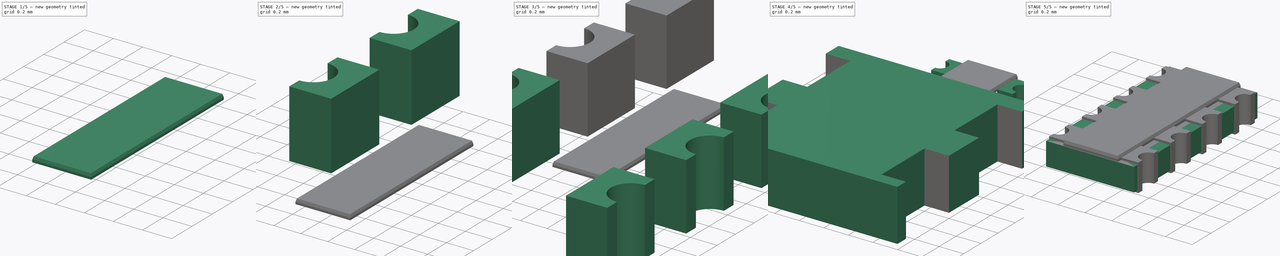
[diagram: build sequence overview — one tinted view per stage of 5, left to right]
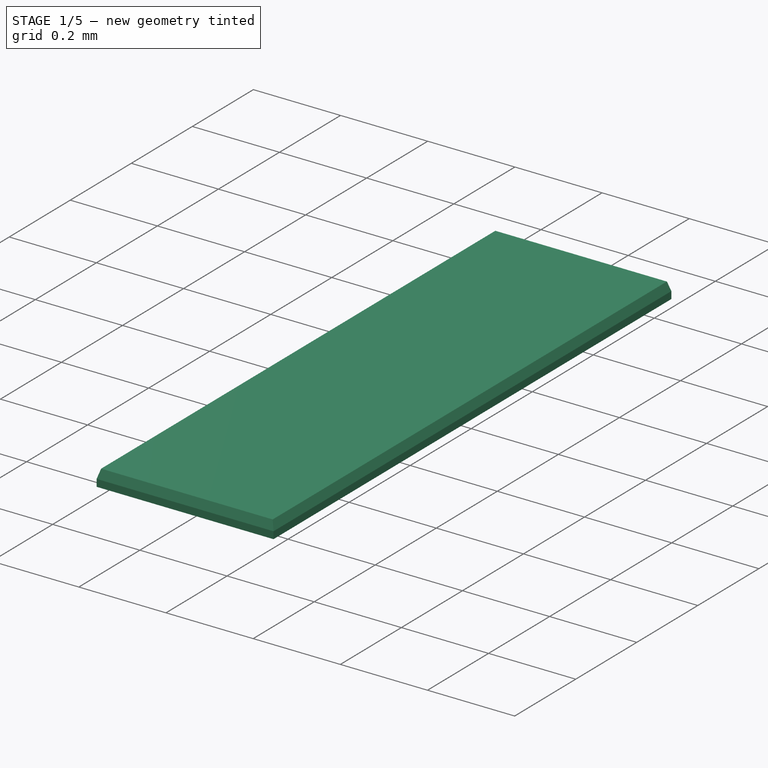
[diagram: stage 1 of 5 — iso view after this stage's code; geometry added in this stage tinted green]
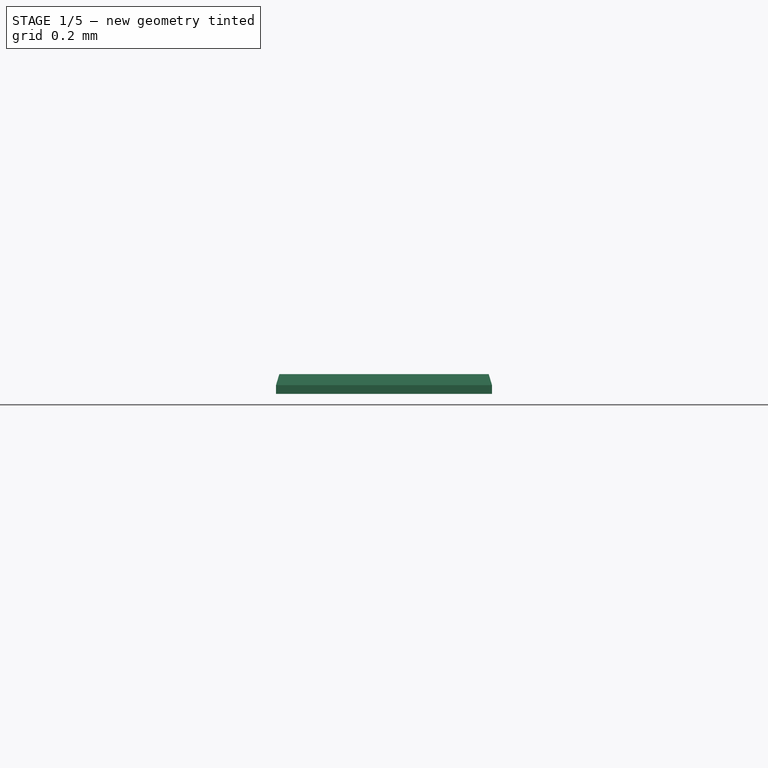
[diagram: stage 1 of 5 — front view after this stage's code; geometry added in this stage tinted green]
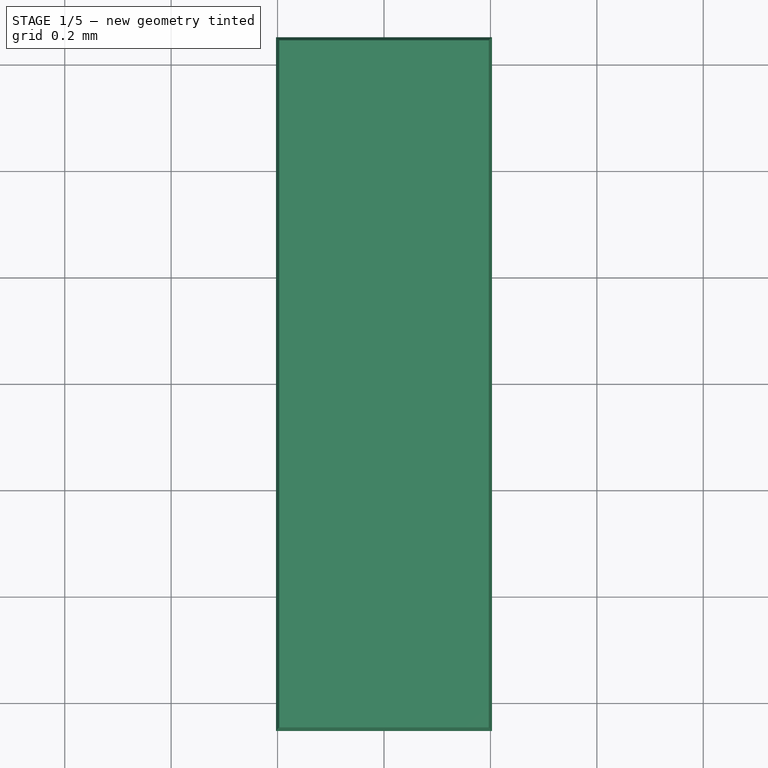
[diagram: stage 1 of 5 — top view after this stage's code; geometry added in this stage tinted green]
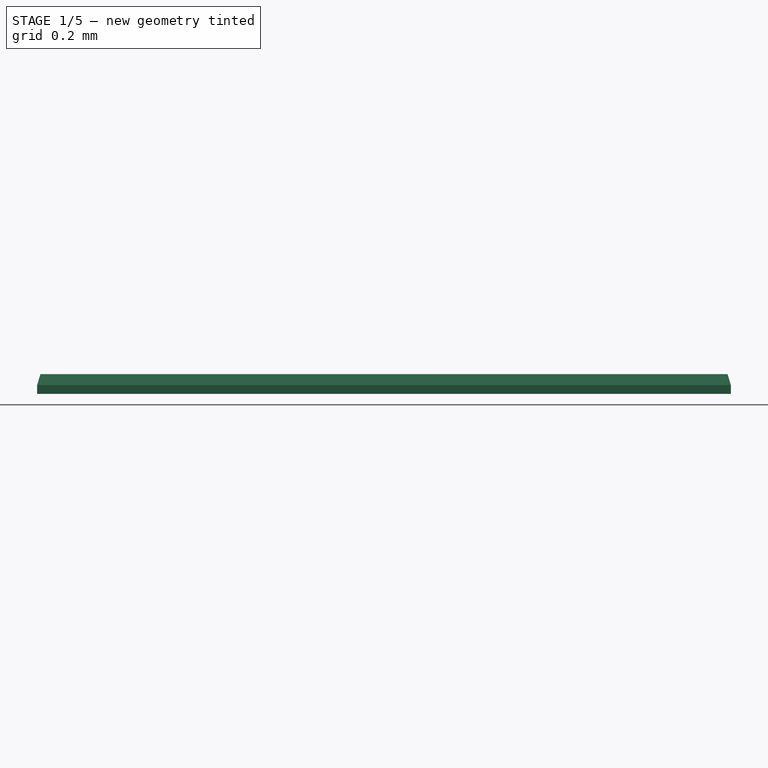
[diagram: stage 1 of 5 — right view after this stage's code; geometry added in this stage tinted green]
FCSTD DOCUMENT  (FreeCAD 0.16R6703 (Git))
Label: R_Array_Convex_4x0603
License: All rights reserved
LicenseURL: http://en.wikipedia.org/wiki/All_rights_reserved
objects: Part::FeaturePython×8, Part::MultiFuse×5, App::DocumentObjectGroup×5, Part::Mirroring×4, Sketcher::SketchObject×2, PartDesign::Pad×2, Part::Box×1, Part::Plane×1, Part::Part2DObjectPython×1, Part::Feature×1
note: 27 computed .brp shape members not serialized (recipe doc carries the construction recipe); baked Part::Feature solids carry a one-line shape summary decoded from their .brp

FEATURE [Part::Box] Box  label="Cube"
  Height = 0.04
  Length = 0.99
  Width = 3.18
FEATURE [Part::Plane] Plane
  Length = 10
  Placement = pos=(0.73,2.2,0.09) rot=(0,0,1;0rad)
  Width = 10
FEATURE [Part::Part2DObjectPython] Rectangle  # Draft 2D object (typed FeaturePython)
  ChamferSize = 0
  Columns = 1
  FilletRadius = 0
  Height = -3.15
  Length = 0.96
  MakeFace = true
  Placement = pos=(0.015,3.165,0.09) rot=(0,0,1;0rad)
  Rows = 1
FEATURE [Part::Feature] Solid
  shape: bbox 1.089 x 3.498 x 0.055 mm, 6 faces (baked)
FEATURE [Part::MultiFuse] Fusion004
  Shapes = -> [Box,Solid]
FEATURE [App::DocumentObjectGroup] Group003  label="top-src"
  Group = -> [Fusion004,Rectangle,Plane]
FEATURE [App::DocumentObjectGroup] Group  label="src"
  Group = -> [Group001,Group002,Group003]
FEATURE [Part::FeaturePython] Clone003  label="top"  # Draft clone (typed FeaturePython)
  Objects = -> [Fusion004]
  Placement = pos=(-0.495,-1.59,0.475001) rot=(0,0,1;0rad)
  Scale = (1,1,1)
FEATURE [Part::FeaturePython] Clone006  label="Clone of top"  # Draft clone (typed FeaturePython)
  Objects = -> [Clone003]
  Placement = pos=(-0.495,-1.59,0.475001) rot=(0,0,1;0rad)
  Scale = (0.41,0.41,0.41)
FEATURE [App::DocumentObjectGroup] Group004  label="rescaled-for-kicad"
  Group = -> [Clone004,Clone005,Clone006]
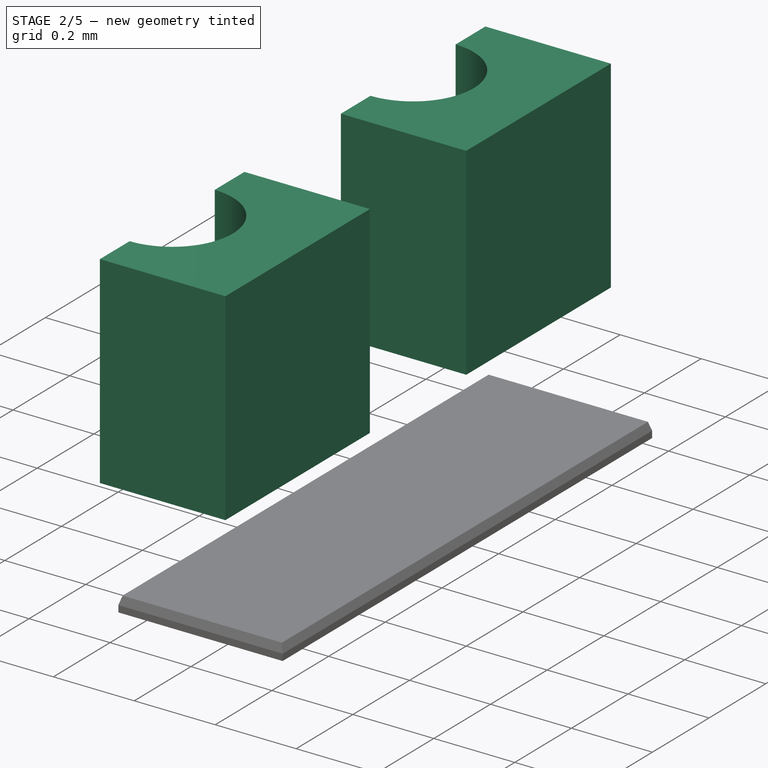
[diagram: stage 2 of 5 — iso view after this stage's code; geometry added in this stage tinted green]
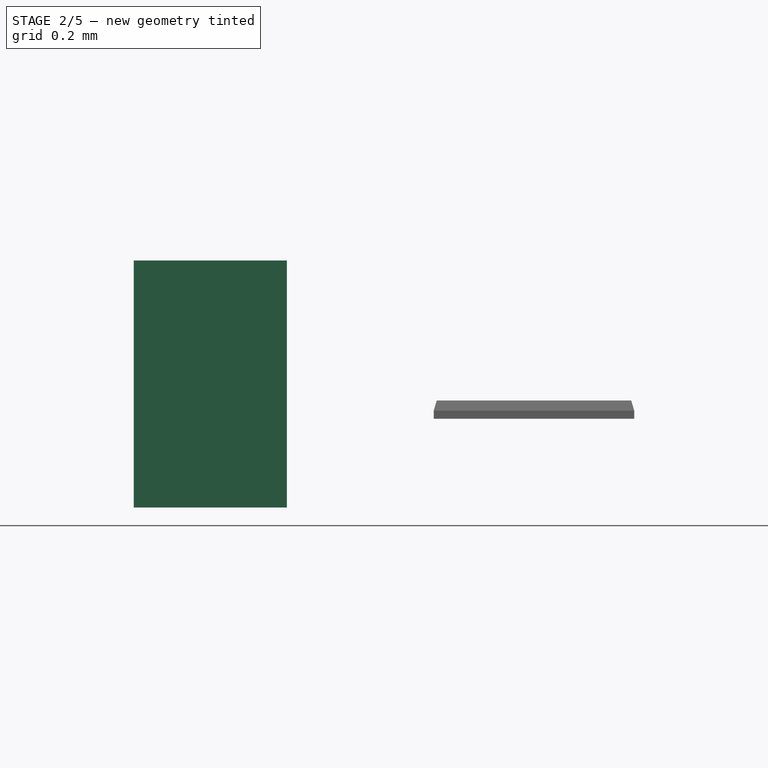
[diagram: stage 2 of 5 — front view after this stage's code; geometry added in this stage tinted green]
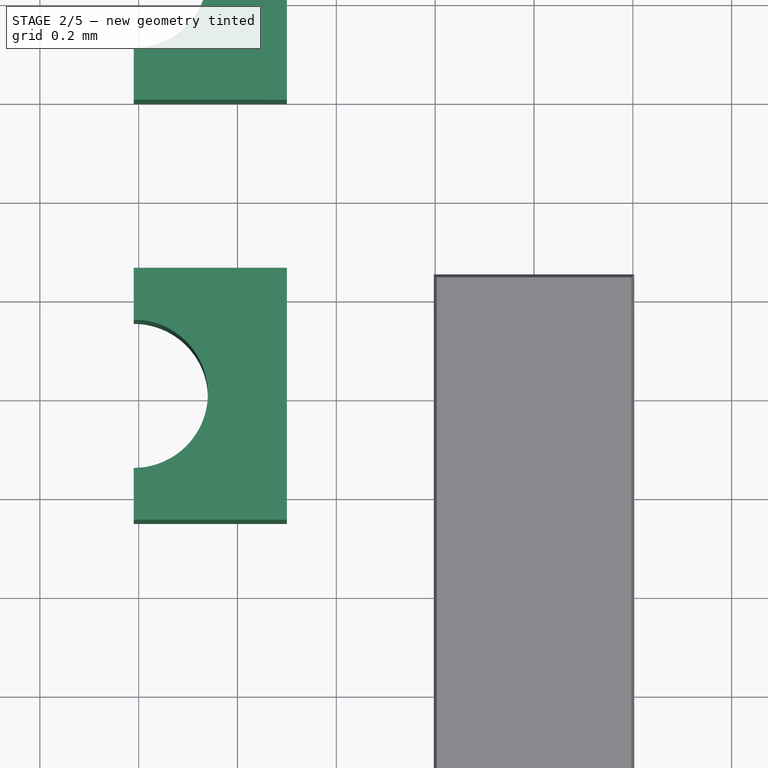
[diagram: stage 2 of 5 — top view after this stage's code; geometry added in this stage tinted green]
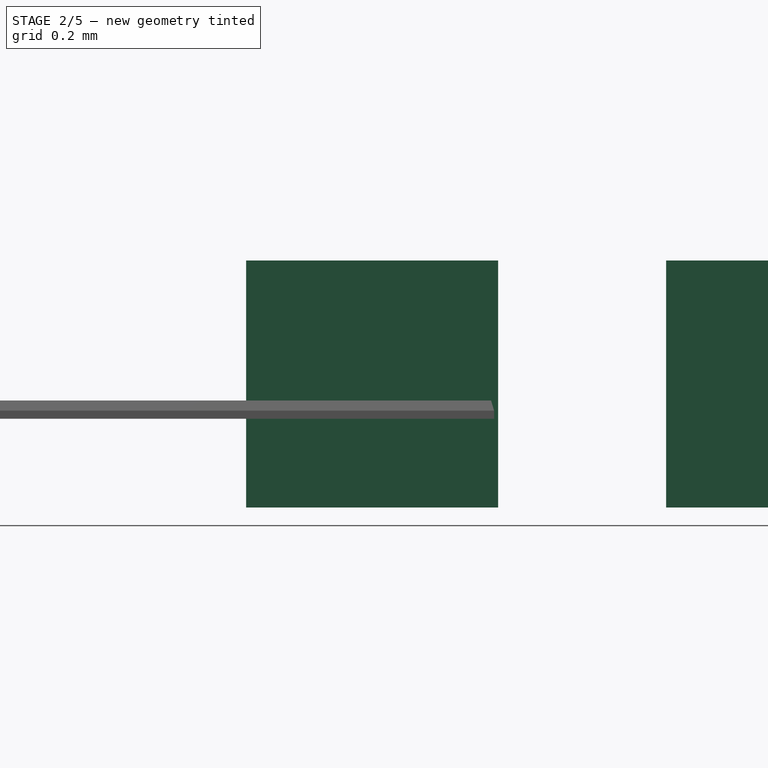
[diagram: stage 2 of 5 — right view after this stage's code; geometry added in this stage tinted green]
FEATURE [Sketcher::SketchObject] Sketch001
  sketch-geometry (8):
    g0: LineSegment StartX=-0.31 StartY=-0.105 StartZ=0 EndX=-0.31 EndY=0 EndZ=0
    g1: LineSegment StartX=-0.31 StartY=0 StartZ=0 EndX=0 EndY=0 EndZ=0
    g2: LineSegment StartX=0 StartY=0 StartZ=0 EndX=0 EndY=-0.51 EndZ=0
    g3: LineSegment StartX=0 StartY=-0.51 StartZ=0 EndX=-0.31 EndY=-0.51 EndZ=0
    g4: LineSegment StartX=-0.31 StartY=-0.51 StartZ=0 EndX=-0.31 EndY=-0.405 EndZ=0
    g5: LineSegment [constr] StartX=-0.31 StartY=-0.105 StartZ=0 EndX=-0.31 EndY=-0.405 EndZ=0
    g6: LineSegment [constr] StartX=-0.31 StartY=-0.255 StartZ=0 EndX=0 EndY=-0.255 EndZ=0
    g7: ArcOfCircle CenterX=-0.31 CenterY=-0.255 CenterZ=0 NormalX=0 NormalY=0 NormalZ=1 Radius=0.15 StartAngle=4.71239 EndAngle=7.85398
  constraints (23):
    c: Vertical(g0)
    c: Coincident(g0,g1)
    c: Horizontal(g1)
    c: Coincident(g1,g2)
    c: Vertical(g2)
    c: Coincident(g2,g3)
    c: Horizontal(g3)
    c: Coincident(g3,g4)
    c: Vertical(g4)
    c: Coincident(g5,g0)
    c: Coincident(g5,g4)
    c: Vertical(g5)
    c: Horizontal(g6)
    c: PointOnObject(g6,g5)
    c: PointOnObject(g6,g2)
    c: Symmetric(g0,g3,g6)
    c: Coincident(g7,g6)
    c: Coincident(g7,g0)
    c: Coincident(g7,g4)
    c: Radius(g7) = 0.15
    c: DistanceY(g2,g2) = 0.51
    c: DistanceX(g3,g3) = 0.31
    c: Coincident(g1,g-1)
FEATURE [PartDesign::Pad] Pad001  label="side-1"
  Length = 0.5
  Length2 = 100
  Sketch = -> Sketch001
  Type = 0
FEATURE [Part::FeaturePython] Clone001  label="clone_side-1"  # Draft clone (typed FeaturePython)
  Objects = -> [Pad001]
  Placement = pos=(-0.5,-1,0.0150012) rot=(0,0,1;0rad)
  Scale = (1,1,1)
FEATURE [Part::FeaturePython] Array  # Draft array (typed FeaturePython)
  Angle = 360
  ArrayType = 0
  Axis = (0,0,1)
  Base = -> Clone001
  Center = (0,0,0)
  Fuse = false
  IntervalAxis = (0,0,0)
  IntervalX = (1,0,0)
  IntervalY = (0,0.85,0)
  IntervalZ = (0,0,0)
  NumberPolar = 1
  NumberX = 1
  NumberY = 2
  NumberZ = 1
FEATURE [Part::Mirroring] Part__Mirroring002  label="Array (Mirror #3)"
  Base = (0,0,0)
  Normal = (0,1,0)
  Source = -> Array
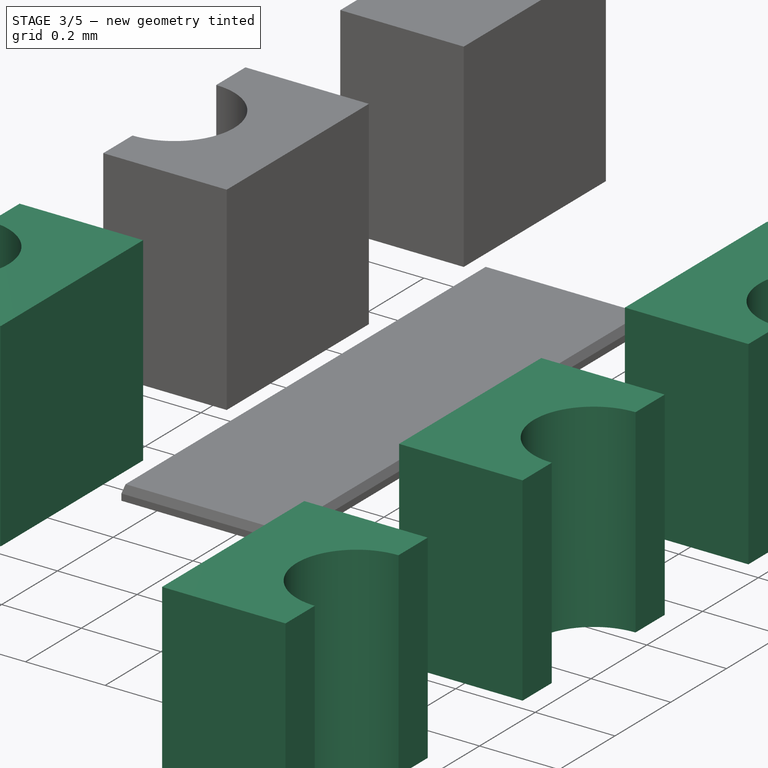
[diagram: stage 3 of 5 — iso view after this stage's code; geometry added in this stage tinted green]
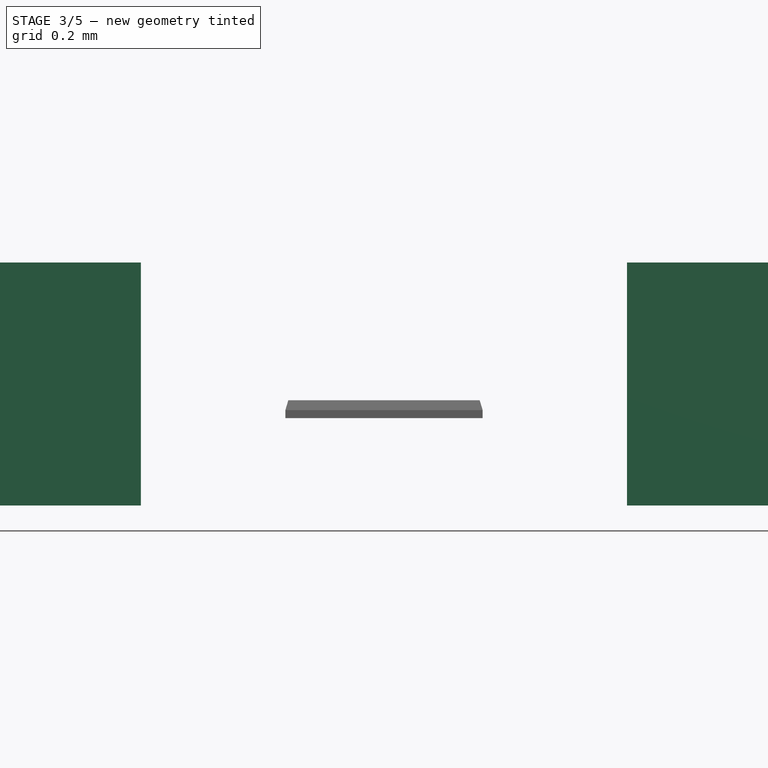
[diagram: stage 3 of 5 — front view after this stage's code; geometry added in this stage tinted green]
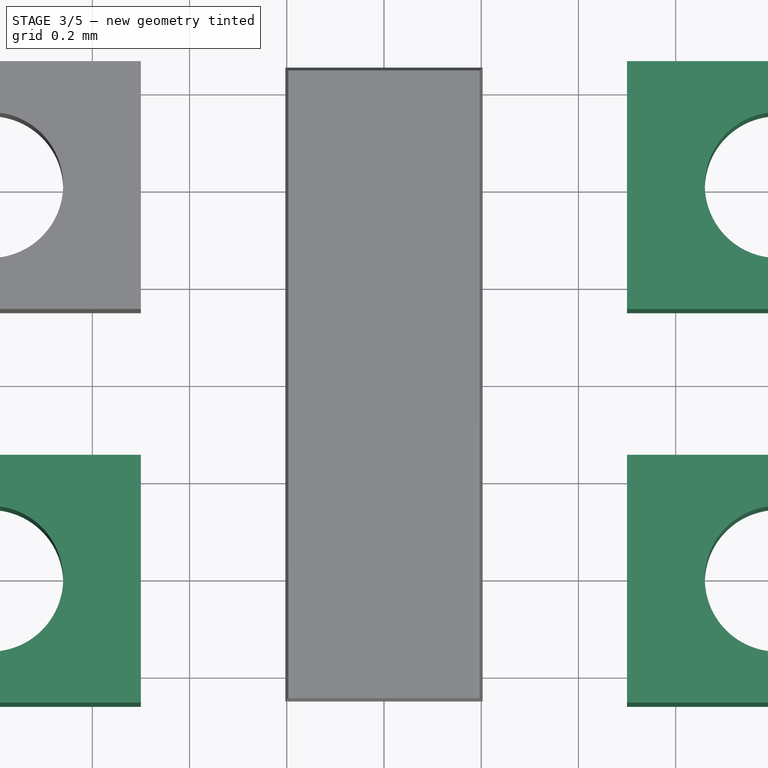
[diagram: stage 3 of 5 — top view after this stage's code; geometry added in this stage tinted green]
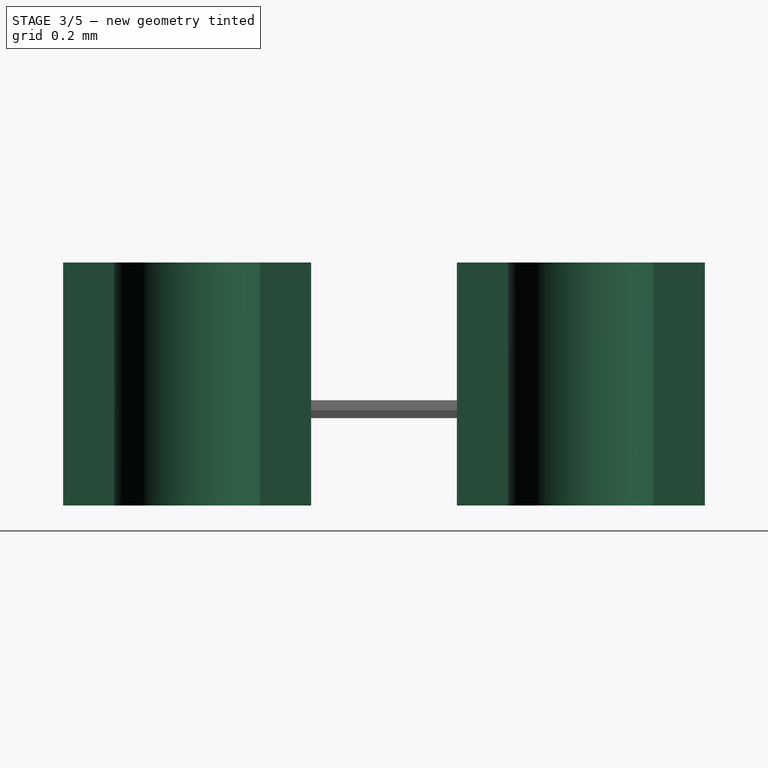
[diagram: stage 3 of 5 — right view after this stage's code; geometry added in this stage tinted green]
FEATURE [Part::MultiFuse] Fusion002
  Shapes = -> [Part__Mirroring002,Array]
FEATURE [Part::Mirroring] Part__Mirroring003  label="Fusion002 (Mirror #4)"
  Base = (0,0,0)
  Normal = (1,0,0)
  Source = -> Fusion002
FEATURE [Part::MultiFuse] Fusion003  label="sides"
  Shapes = -> [Part__Mirroring003,Fusion002]
FEATURE [App::DocumentObjectGroup] Group002  label="side-src"
  Group = -> [Fusion003,Pad001]
FEATURE [Part::FeaturePython] Clone002  label="sides001"  # Draft clone (typed FeaturePython)
  Objects = -> [Fusion003]
  Scale = (1,1,1)
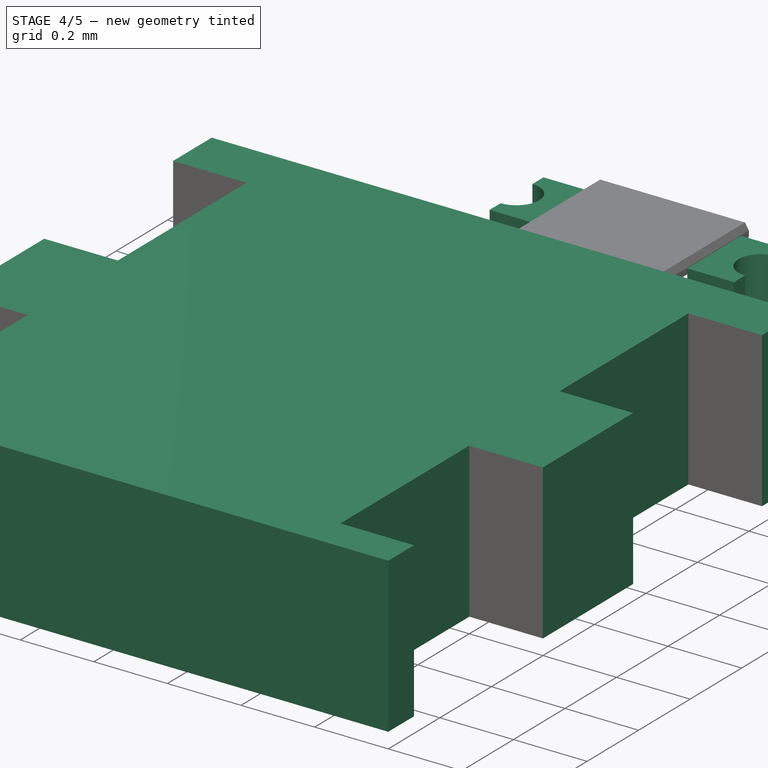
[diagram: stage 4 of 5 — iso view after this stage's code; geometry added in this stage tinted green]
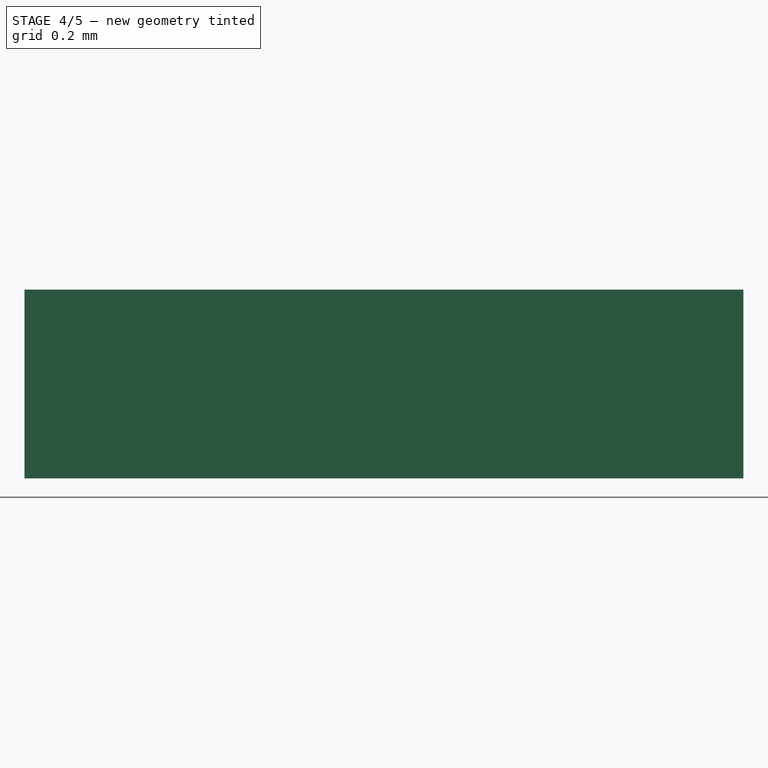
[diagram: stage 4 of 5 — front view after this stage's code; geometry added in this stage tinted green]
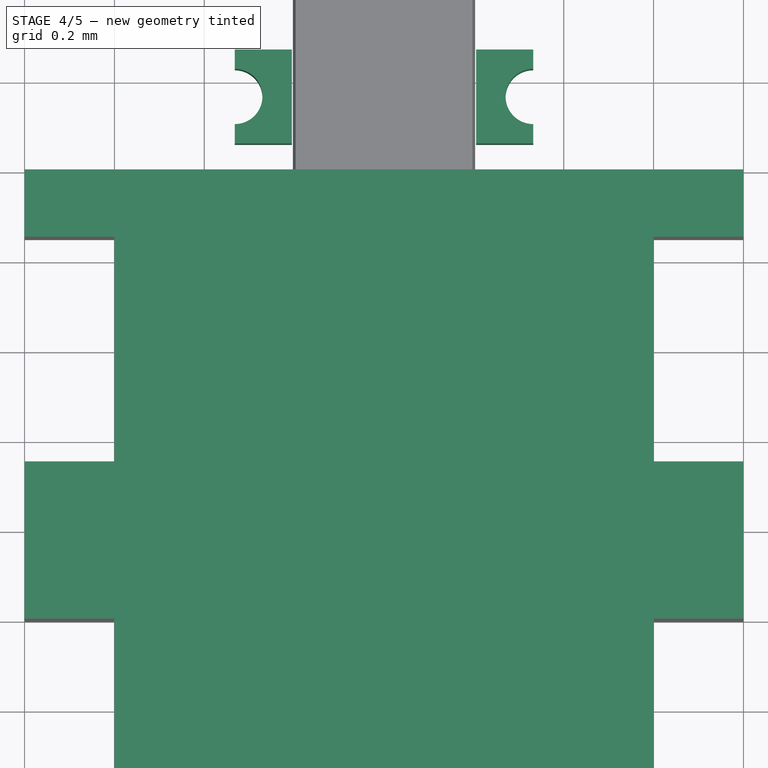
[diagram: stage 4 of 5 — top view after this stage's code; geometry added in this stage tinted green]
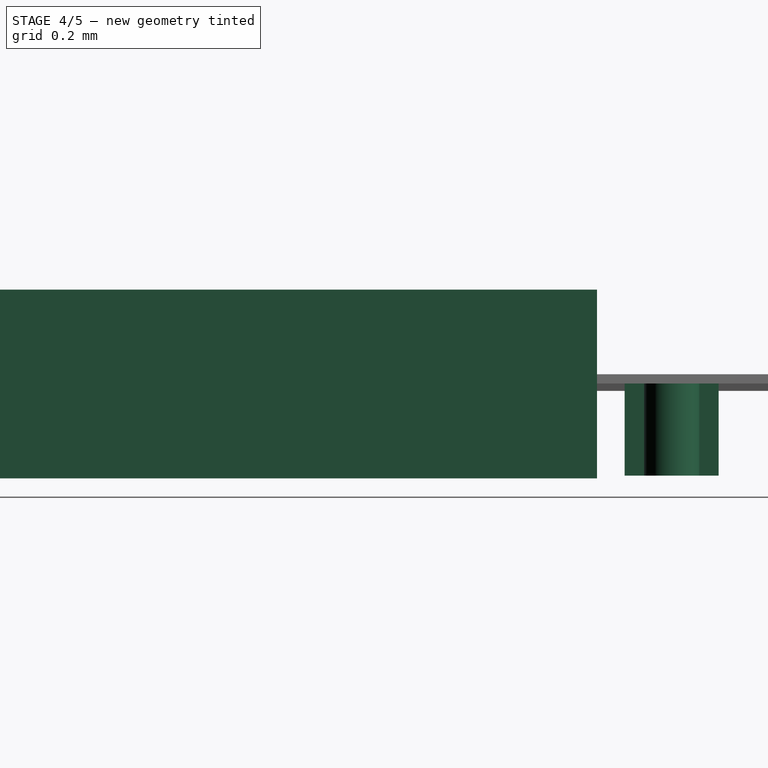
[diagram: stage 4 of 5 — right view after this stage's code; geometry added in this stage tinted green]
FEATURE [Sketcher::SketchObject] Sketch
  sketch-geometry (14):
    g0: LineSegment StartX=0 StartY=-1.6 StartZ=0 EndX=-0.8 EndY=-1.6 EndZ=0
    g1: LineSegment StartX=-0.8 StartY=-1.6 StartZ=0 EndX=-0.8 EndY=-1.5 EndZ=0
    g2: LineSegment StartX=-0.8 StartY=-1.5 StartZ=0 EndX=-0.6 EndY=-1.5 EndZ=0
    g3: LineSegment StartX=-0.6 StartY=-1.5 StartZ=0 EndX=-0.6 EndY=-1 EndZ=0
    g4: LineSegment StartX=-0.6 StartY=-1 StartZ=0 EndX=-0.8 EndY=-1 EndZ=0
    g5: LineSegment StartX=-0.8 StartY=-1 StartZ=0 EndX=-0.8 EndY=-0.65 EndZ=0
    g6: LineSegment StartX=-0.8 StartY=-0.65 StartZ=0 EndX=-0.6 EndY=-0.65 EndZ=0
    g7: LineSegment StartX=-0.6 StartY=-0.65 StartZ=0 EndX=-0.6 EndY=-0.15 EndZ=0
    g8: LineSegment StartX=-0.6 StartY=-0.15 StartZ=0 EndX=-0.8 EndY=-0.15 EndZ=0
    g9: LineSegment StartX=-0.8 StartY=-0.15 StartZ=0 EndX=-0.8 EndY=0 EndZ=0
    g10: LineSegment StartX=-0.8 StartY=0 StartZ=0 EndX=0 EndY=0 EndZ=0
    g11: LineSegment StartX=0 StartY=0 StartZ=0 EndX=0 EndY=-1.6 EndZ=0
    g12: LineSegment [constr] StartX=-0.8 StartY=0 StartZ=0 EndX=-0.8 EndY=-1.6 EndZ=0
    g13: LineSegment [constr] StartX=-0.6 StartY=0 StartZ=0 EndX=-0.6 EndY=-1.6 EndZ=0
  constraints (41):
    c: Horizontal(g0)
    c: Coincident(g0,g1)
    c: Vertical(g1)
    c: Coincident(g1,g2)
    c: Horizontal(g2)
    c: Coincident(g2,g3)
    c: Vertical(g3)
    c: Coincident(g3,g4)
    c: Horizontal(g4)
    c: Coincident(g4,g5)
    c: Vertical(g5)
    c: Coincident(g5,g6)
    c: Horizontal(g6)
    c: Coincident(g6,g7)
    c: Vertical(g7)
    c: Coincident(g7,g8)
    c: Horizontal(g8)
    c: Coincident(g8,g9)
    c: PointOnObject(g9,g-1)
    c: Vertical(g9)
    c: Coincident(g9,g10)
    c: Coincident(g10,g-1)
    c: Coincident(g10,g11)
    c: PointOnObject(g11,g-2)
    c: Coincident(g12,g9)
    c: Coincident(g12,g0)
    c: Vertical(g12)
    c: Vertical(g13)
    c: PointOnObject(g13,g10)
    c: PointOnObject(g13,g0)
    c: PointOnObject(g2,g13)
    c: PointOnObject(g6,g13)
    c: PointOnObject(g4,g12)
    c: DistanceX(g10,g10) = 0.8
    c: DistanceX(g2,g2) = 0.2
    c: Coincident(g0,g11)
    c: Equal(g3,g7)
    c: DistanceY(g11,g11) = 1.6
    c: DistanceY(g5,g5) = 0.35
    c: DistanceY(g1,g1) = 0.1
    c: DistanceY(g9,g9) = 0.15
FEATURE [PartDesign::Pad] Pad
  Length = 0.42
  Length2 = 100
  Sketch = -> Sketch
  Type = 0
FEATURE [Part::Mirroring] Part__Mirroring  label="Pad (Mirror #1)"
  Base = (0,0,0)
  Normal = (1,0,0)
  Source = -> Pad
FEATURE [Part::MultiFuse] Fusion
  Shapes = -> [Part__Mirroring,Pad]
FEATURE [Part::FeaturePython] Clone005  label="Clone of sides001"  # Draft clone (typed FeaturePython)
  Objects = -> [Clone002]
  Scale = (0.41,0.41,0.41)
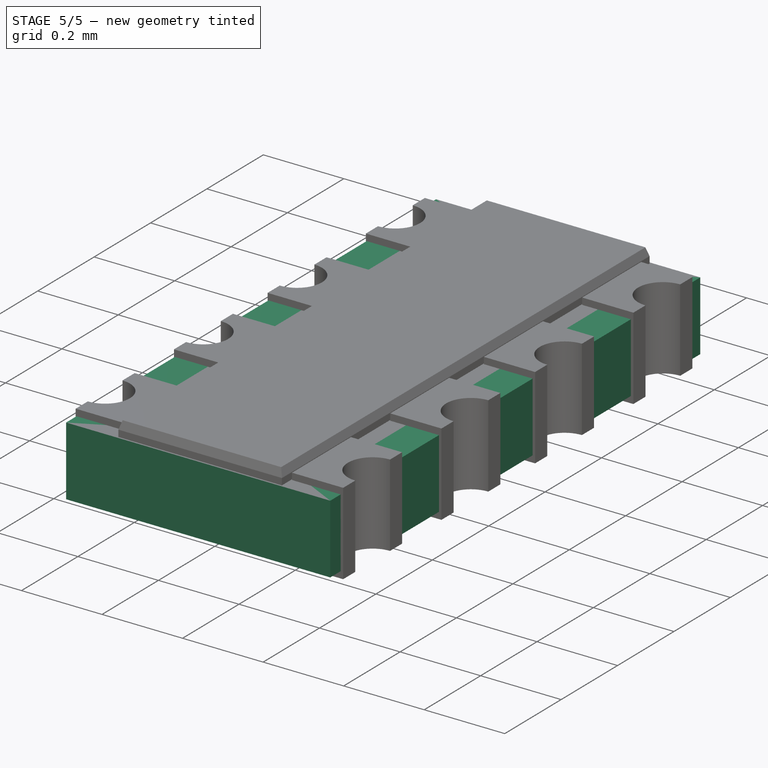
[diagram: stage 5 of 5 — iso view after this stage's code; geometry added in this stage tinted green]
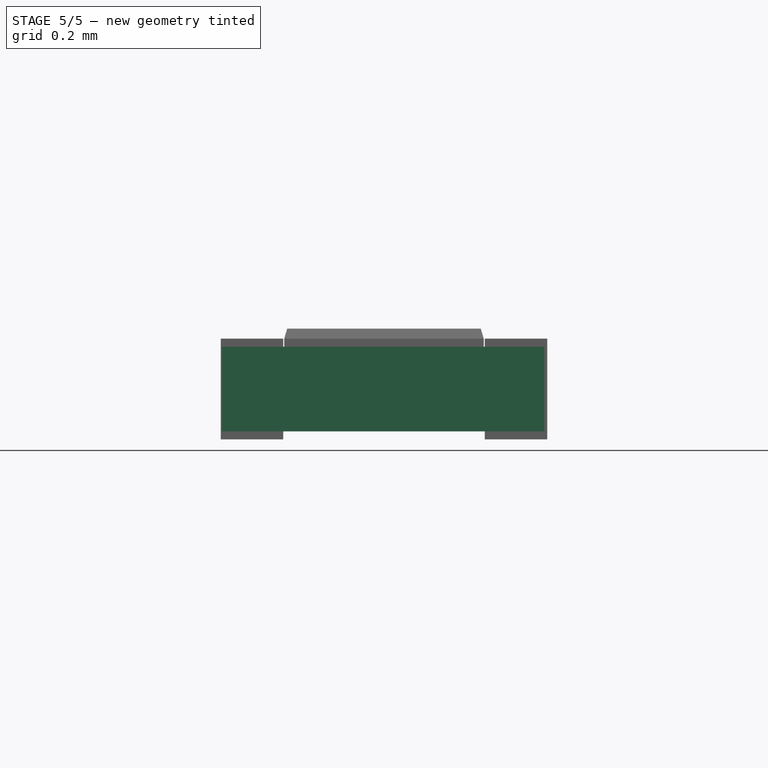
[diagram: stage 5 of 5 — front view after this stage's code; geometry added in this stage tinted green]
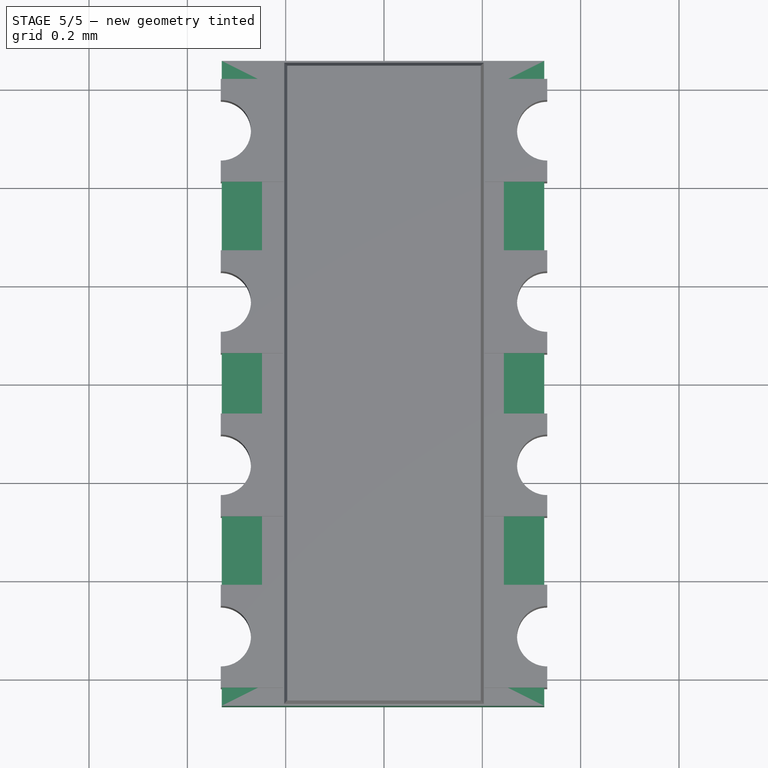
[diagram: stage 5 of 5 — top view after this stage's code; geometry added in this stage tinted green]
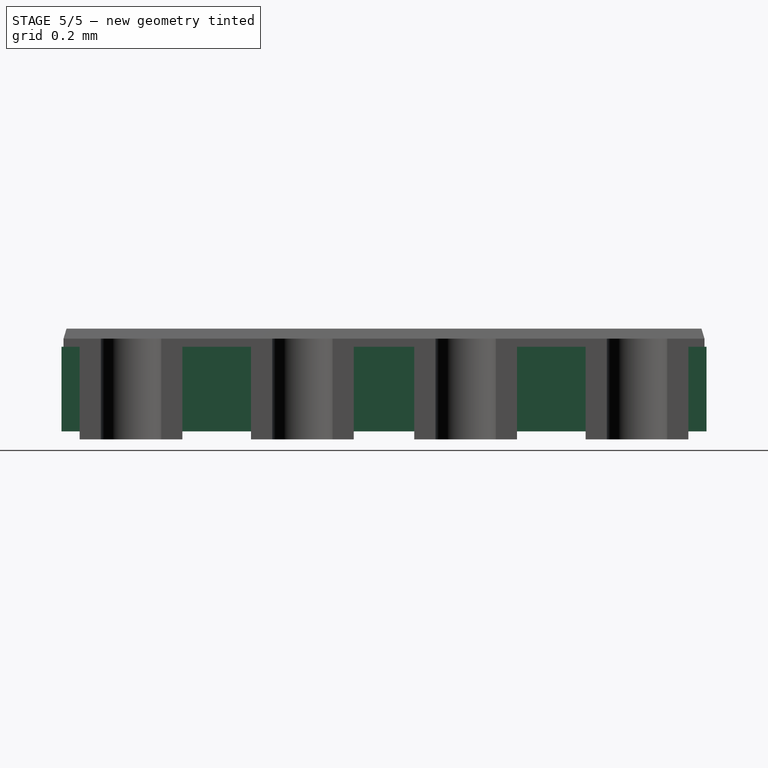
[diagram: stage 5 of 5 — right view after this stage's code; geometry added in this stage tinted green]
FEATURE [Part::Mirroring] Part__Mirroring001  label="Fusion (Mirror #2)"
  Base = (0,0,0)
  Normal = (0,1,0)
  Source = -> Fusion
FEATURE [Part::MultiFuse] Fusion001
  Shapes = -> [Part__Mirroring001,Fusion]
FEATURE [App::DocumentObjectGroup] Group001  label="central-body-src"
  Group = -> [Fusion001]
FEATURE [Part::FeaturePython] Clone  label="central-body"  # Draft clone (typed FeaturePython)
  Objects = -> [Fusion001]
  Placement = pos=(-0.00499993,3.4752e-08,0.0550012) rot=(0,0,1;0rad)
  Scale = (1,1,1)
FEATURE [Part::FeaturePython] Clone004  label="Clone of central-body"  # Draft clone (typed FeaturePython)
  Objects = -> [Clone]
  Placement = pos=(-0.00499993,3.4752e-08,0.0550012) rot=(0,0,1;0rad)
  Scale = (0.41,0.41,0.41)
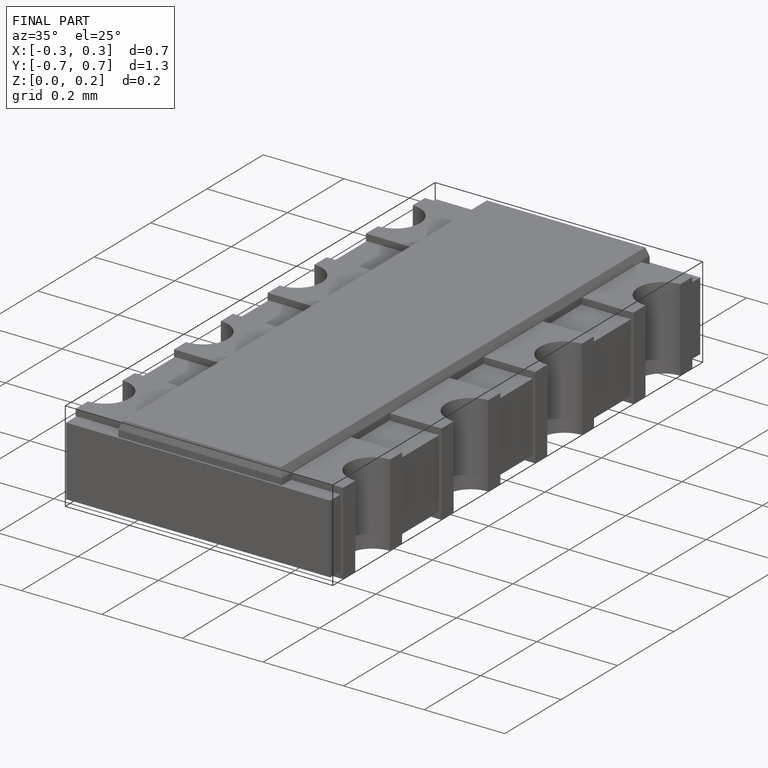
[diagram: finished part — iso view with bounding-box wireframe]
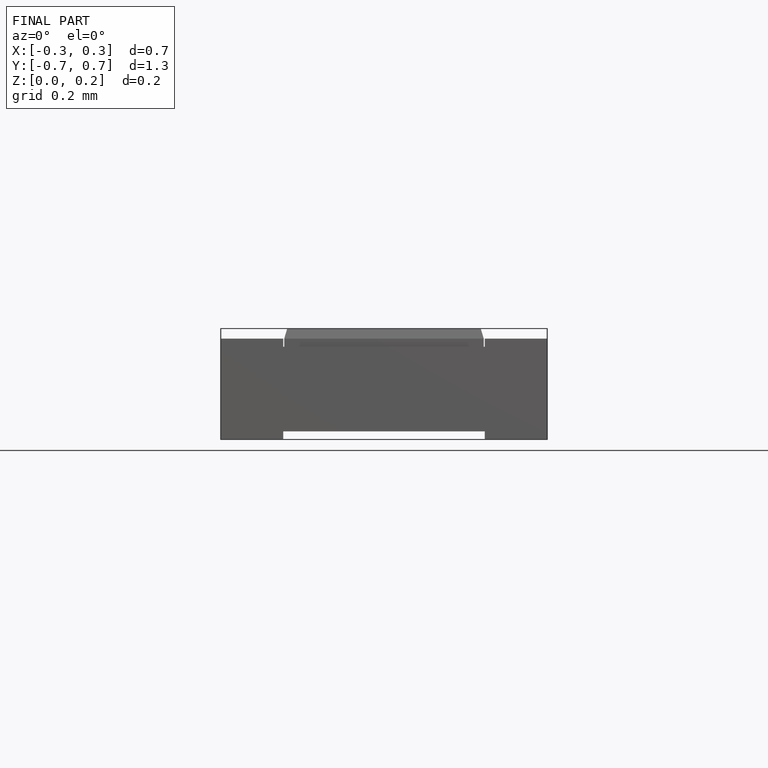
[diagram: finished part — front view with bounding-box wireframe]
